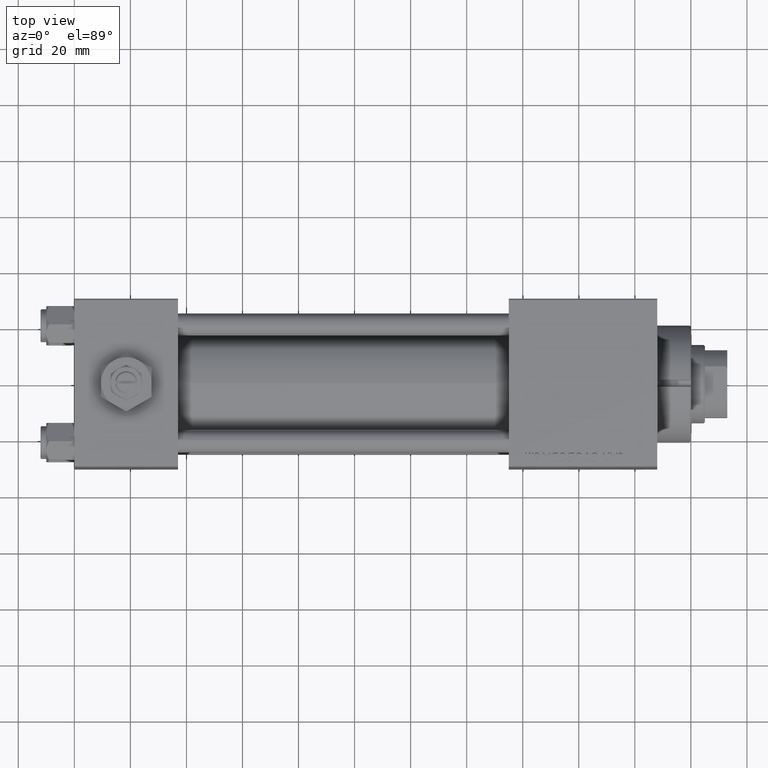
[diagram: clean part render]
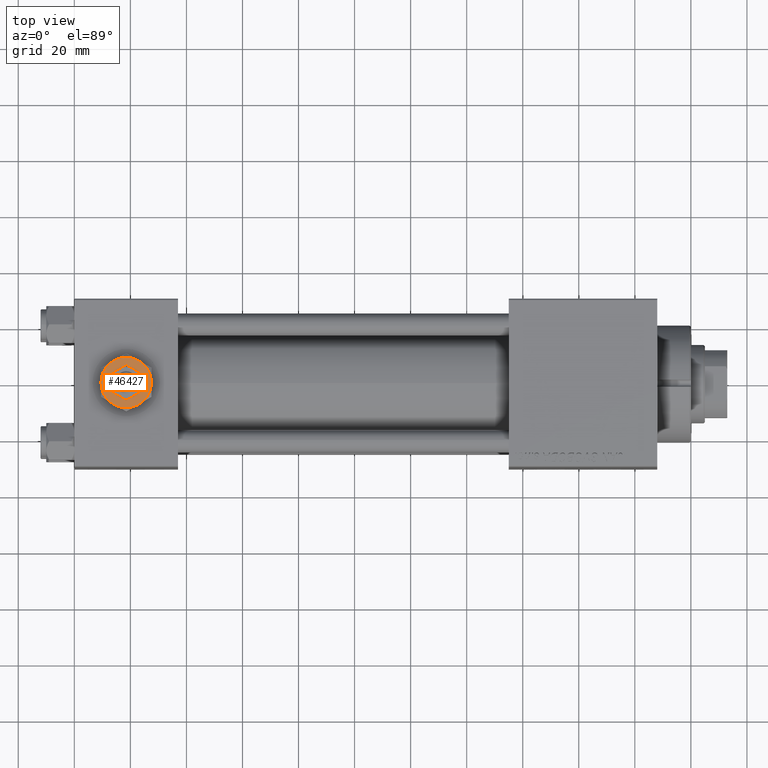
[diagram: same view with one face highlighted and labeled with its STEP entity id]
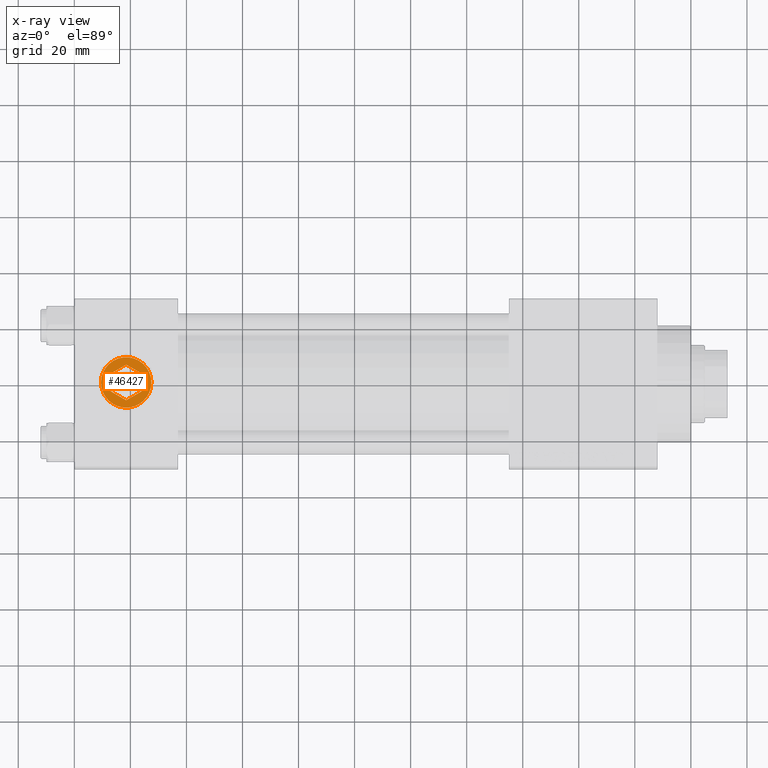
[diagram: x-ray of the same camera — body ghosted, the highlighted face saturated]
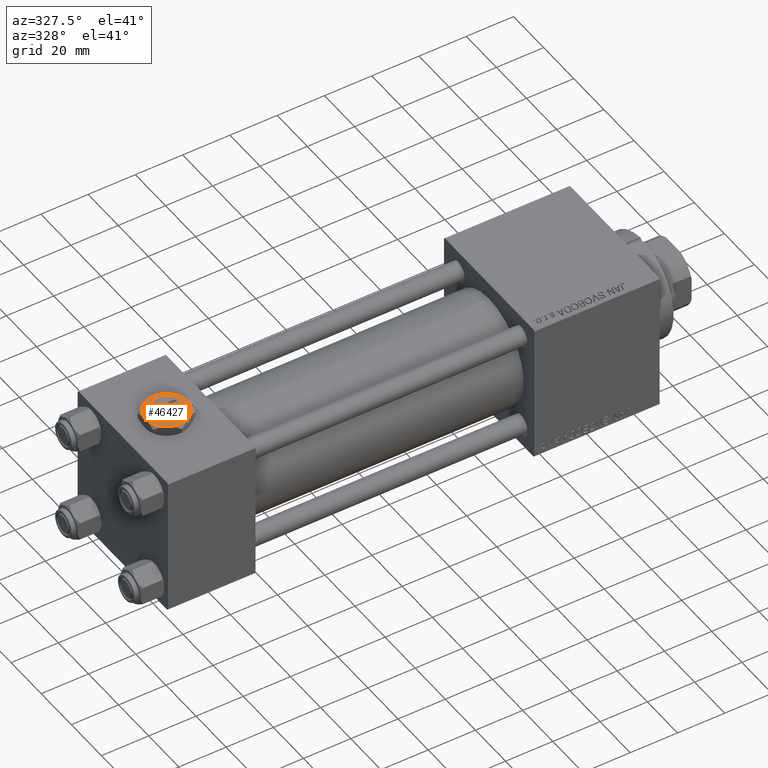
[diagram: same view with one face highlighted and labeled with its STEP entity id]
A machine part, top view. The second image highlights one B-rep face of the part: STEP entity #46427.
The next image is the same camera in x-ray: the body ghosted, the highlighted face saturated — about 0% of this face is hidden behind the body in this view.
A second angle (auxiliary view) of the same face is appended — the face is thin or edge-on in the first view.
In plain terms, the highlighted planar face has unit normal (0, 0, 1).
Its self-contained STEP definition (entity closure, byte-faithful):
#187 = LINE ( 'NONE', #32376, #12826 ) ;
#357 = LINE ( 'NONE', #35458, #21827 ) ;
#443 = CARTESIAN_POINT ( 'NONE',  ( 4.500000000000000000, 7.794228634059947147, 4.299999999999999822 ) ) ;
#1286 = DIRECTION ( 'NONE',  ( 1.000000000000000000, 0.000000000000000000, 0.000000000000000000 ) ) ;
#1504 = EDGE_CURVE ( 'NONE', #30751, #33953, #19596, .T. ) ;
#1553 = CIRCLE ( 'NONE', #49598, 9.000000000000000000 ) ;
#1892 = VECTOR ( 'NONE', #4591, 1000.000000000000000 ) ;
#2104 = ORIENTED_EDGE ( 'NONE', *, *, #18911, .T. ) ;
#2302 = VERTEX_POINT ( 'NONE', #43899 ) ;
#2419 = CARTESIAN_POINT ( 'NONE',  ( 0.000000000000000000, 6.350852961085883486, 4.299999999999999822 ) ) ;
#3483 = CARTESIAN_POINT ( 'NONE',  ( 0.000000000000000000, 0.000000000000000000, 4.299999999999999822 ) ) ;
#4326 = DIRECTION ( 'NONE',  ( 0.000000000000000000, -1.000000000000000000, 0.000000000000000000 ) ) ;
#4591 = DIRECTION ( 'NONE',  ( -2.731481088613017227E-16, 1.000000000000000000, 0.000000000000000000 ) ) ;
#5126 = AXIS2_PLACEMENT_3D ( 'NONE', #49446, #25924, #13256 ) ;
#5233 = ORIENTED_EDGE ( 'NONE', *, *, #31580, .F. ) ;
#7044 = ORIENTED_EDGE ( 'NONE', *, *, #19387, .T. ) ;
#7446 = CIRCLE ( 'NONE', #30193, 9.000000000000000000 ) ;
#7541 = VERTEX_POINT ( 'NONE', #443 ) ;
#7604 = ORIENTED_EDGE ( 'NONE', *, *, #43086, .F. ) ;
#7821 = DIRECTION ( 'NONE',  ( 1.000000000000000000, 0.000000000000000000, 0.000000000000000000 ) ) ;
#7831 = ORIENTED_EDGE ( 'NONE', *, *, #1504, .F. ) ;
#8319 = CARTESIAN_POINT ( 'NONE',  ( -1.343581385738006573E-15, -6.350852961085881709, 4.299999999999999822 ) ) ;
#11291 = EDGE_LOOP ( 'NONE', ( #31088, #35893, #5233, #20881, #7604, #7831 ) ) ;
#11347 = VERTEX_POINT ( 'NONE', #34428 ) ;
#12301 = CARTESIAN_POINT ( 'NONE',  ( 0.000000000000000000, 0.000000000000000000, 4.299999999999999822 ) ) ;
#12501 = DIRECTION ( 'NONE',  ( 0.000000000000000000, 0.000000000000000000, 1.000000000000000000 ) ) ;
#12820 = DIRECTION ( 'NONE',  ( 0.000000000000000000, 0.000000000000000000, 1.000000000000000000 ) ) ;
#12826 = VECTOR ( 'NONE', #24179, 1000.000000000000000 ) ;
#13256 = DIRECTION ( 'NONE',  ( 1.000000000000000000, 0.000000000000000000, -0.000000000000000000 ) ) ;
#14787 = CARTESIAN_POINT ( 'NONE',  ( -9.000000000000000000, 0.000000000000000000, 4.299999999999999822 ) ) ;
#16442 = CARTESIAN_POINT ( 'NONE',  ( 4.499999999999997335, -7.794228634059948035, 4.299999999999999822 ) ) ;
#16494 = EDGE_CURVE ( 'NONE', #7541, #39698, #45265, .T. ) ;
#17292 = VECTOR ( 'NONE', #4326, 1000.000000000000000 ) ;
#17469 = FACE_BOUND ( 'NONE', #11291, .T. ) ;
#18911 = EDGE_CURVE ( 'NONE', #11347, #7541, #7446, .T. ) ;
#19146 = EDGE_CURVE ( 'NONE', #2302, #39562, #47069, .T. ) ;
#19387 = EDGE_CURVE ( 'NONE', #39562, #11347, #1553, .T. ) ;
#19596 = LINE ( 'NONE', #40483, #17292 ) ;
#20881 = ORIENTED_EDGE ( 'NONE', *, *, #32129, .F. ) ;
#21338 = LINE ( 'NONE', #33003, #35448 ) ;
#21827 = VECTOR ( 'NONE', #36243, 1000.000000000000000 ) ;
#21859 = EDGE_CURVE ( 'NONE', #23604, #37835, #357, .T. ) ;
#22210 = DIRECTION ( 'NONE',  ( -0.8660254037844385966, -0.4999999999999999445, 0.000000000000000000 ) ) ;
#23303 = DIRECTION ( 'NONE',  ( 0.000000000000000000, 0.000000000000000000, 1.000000000000000000 ) ) ;
#23604 = VERTEX_POINT ( 'NONE', #52162 ) ;
#24119 = CARTESIAN_POINT ( 'NONE',  ( 0.000000000000000000, 0.000000000000000000, 4.299999999999999822 ) ) ;
#24124 = CARTESIAN_POINT ( 'NONE',  ( 5.500000000000000888, -3.175426480542940855, 4.299999999999999822 ) ) ;
#24179 = DIRECTION ( 'NONE',  ( 0.8660254037844388186, 0.4999999999999997224, 0.000000000000000000 ) ) ;
#24326 = CARTESIAN_POINT ( 'NONE',  ( 0.000000000000000000, 0.000000000000000000, 4.299999999999999822 ) ) ;
#24365 = CIRCLE ( 'NONE', #42905, 9.000000000000000000 ) ;
#24894 = EDGE_CURVE ( 'NONE', #32311, #2302, #43019, .T. ) ;
#24999 = AXIS2_PLACEMENT_3D ( 'NONE', #24326, #43881, #47850 ) ;
#25040 = EDGE_LOOP ( 'NONE', ( #7044, #2104, #25413, #46531, #31307, #28196 ) ) ;
#25413 = ORIENTED_EDGE ( 'NONE', *, *, #16494, .T. ) ;
#25924 = DIRECTION ( 'NONE',  ( 0.000000000000000000, 0.000000000000000000, 1.000000000000000000 ) ) ;
#28196 = ORIENTED_EDGE ( 'NONE', *, *, #19146, .T. ) ;
#29372 = CARTESIAN_POINT ( 'NONE',  ( 0.000000000000000000, 6.350852961085883486, 4.299999999999999822 ) ) ;
#29640 = PLANE ( 'NONE',  #5126 ) ;
#29708 = CARTESIAN_POINT ( 'NONE',  ( -5.500000000000000000, -3.175426480542942187, 4.299999999999999822 ) ) ;
#30187 = DIRECTION ( 'NONE',  ( 1.000000000000000000, 0.000000000000000000, 0.000000000000000000 ) ) ;
#30193 = AXIS2_PLACEMENT_3D ( 'NONE', #49330, #37433, #1286 ) ;
#30661 = CARTESIAN_POINT ( 'NONE',  ( -4.500000000000000000, 7.794228634059947147, 4.299999999999999822 ) ) ;
#30751 = VERTEX_POINT ( 'NONE', #33798 ) ;
#31088 = ORIENTED_EDGE ( 'NONE', *, *, #46380, .F. ) ;
#31307 = ORIENTED_EDGE ( 'NONE', *, *, #24894, .T. ) ;
#31580 = EDGE_CURVE ( 'NONE', #49389, #23604, #44721, .T. ) ;
#31869 = AXIS2_PLACEMENT_3D ( 'NONE', #12301, #12820, #7821 ) ;
#32129 = EDGE_CURVE ( 'NONE', #44508, #49389, #187, .T. ) ;
#32311 = VERTEX_POINT ( 'NONE', #14787 ) ;
#32376 = CARTESIAN_POINT ( 'NONE',  ( -1.343581385738006573E-15, -6.350852961085881709, 4.299999999999999822 ) ) ;
#33003 = CARTESIAN_POINT ( 'NONE',  ( -5.500000000000000000, -3.175426480542942187, 4.299999999999999822 ) ) ;
#33798 = CARTESIAN_POINT ( 'NONE',  ( -5.500000000000000000, 3.175426480542941743, 4.299999999999999822 ) ) ;
#33953 = VERTEX_POINT ( 'NONE', #29708 ) ;
#34378 = LINE ( 'NONE', #29372, #37181 ) ;
#34428 = CARTESIAN_POINT ( 'NONE',  ( 8.999999999999998224, 0.000000000000000000, 4.299999999999999822 ) ) ;
#35448 = VECTOR ( 'NONE', #37209, 1000.000000000000000 ) ;
#35458 = CARTESIAN_POINT ( 'NONE',  ( 5.499999999999999112, 3.175426480542943075, 4.299999999999999822 ) ) ;
#35673 = DIRECTION ( 'NONE',  ( 0.000000000000000000, 0.000000000000000000, 1.000000000000000000 ) ) ;
#35893 = ORIENTED_EDGE ( 'NONE', *, *, #21859, .F. ) ;
#36243 = DIRECTION ( 'NONE',  ( -0.8660254037844387076, 0.4999999999999999445, 0.000000000000000000 ) ) ;
#37181 = VECTOR ( 'NONE', #22210, 1000.000000000000114 ) ;
#37209 = DIRECTION ( 'NONE',  ( 0.8660254037844387076, -0.4999999999999998890, 0.000000000000000000 ) ) ;
#37293 = FACE_OUTER_BOUND ( 'NONE', #25040, .T. ) ;
#37433 = DIRECTION ( 'NONE',  ( 0.000000000000000000, 0.000000000000000000, 1.000000000000000000 ) ) ;
#37835 = VERTEX_POINT ( 'NONE', #2419 ) ;
#38905 = EDGE_CURVE ( 'NONE', #39698, #32311, #24365, .T. ) ;
#39562 = VERTEX_POINT ( 'NONE', #16442 ) ;
#39698 = VERTEX_POINT ( 'NONE', #30661 ) ;
#40426 = DIRECTION ( 'NONE',  ( 1.000000000000000000, 0.000000000000000000, 0.000000000000000000 ) ) ;
#40483 = CARTESIAN_POINT ( 'NONE',  ( -5.500000000000000000, 3.175426480542941743, 4.299999999999999822 ) ) ;
#40748 = CARTESIAN_POINT ( 'NONE',  ( 5.500000000000000888, -3.175426480542940855, 4.299999999999999822 ) ) ;
#41370 = AXIS2_PLACEMENT_3D ( 'NONE', #47359, #23303, #30187 ) ;
#42905 = AXIS2_PLACEMENT_3D ( 'NONE', #3483, #35673, #40426 ) ;
#43019 = CIRCLE ( 'NONE', #41370, 9.000000000000000000 ) ;
#43086 = EDGE_CURVE ( 'NONE', #33953, #44508, #21338, .T. ) ;
#43881 = DIRECTION ( 'NONE',  ( 0.000000000000000000, 0.000000000000000000, 1.000000000000000000 ) ) ;
#43899 = CARTESIAN_POINT ( 'NONE',  ( -4.499999999999998224, -7.794228634059947147, 4.299999999999999822 ) ) ;
#44508 = VERTEX_POINT ( 'NONE', #8319 ) ;
#44721 = LINE ( 'NONE', #40748, #1892 ) ;
#44731 = DIRECTION ( 'NONE',  ( 1.000000000000000000, 0.000000000000000000, 0.000000000000000000 ) ) ;
#45265 = CIRCLE ( 'NONE', #24999, 9.000000000000000000 ) ;
#46380 = EDGE_CURVE ( 'NONE', #37835, #30751, #34378, .T. ) ;
#46427 = ADVANCED_FACE ( 'NONE', ( #37293, #17469 ), #29640, .T. ) ;
#46531 = ORIENTED_EDGE ( 'NONE', *, *, #38905, .T. ) ;
#47069 = CIRCLE ( 'NONE', #31869, 9.000000000000000000 ) ;
#47359 = CARTESIAN_POINT ( 'NONE',  ( 0.000000000000000000, 0.000000000000000000, 4.299999999999999822 ) ) ;
#47850 = DIRECTION ( 'NONE',  ( 1.000000000000000000, 0.000000000000000000, 0.000000000000000000 ) ) ;
#49330 = CARTESIAN_POINT ( 'NONE',  ( 0.000000000000000000, 0.000000000000000000, 4.299999999999999822 ) ) ;
#49389 = VERTEX_POINT ( 'NONE', #24124 ) ;
#49446 = CARTESIAN_POINT ( 'NONE',  ( 0.000000000000000000, 0.000000000000000000, 4.299999999999999822 ) ) ;
#49598 = AXIS2_PLACEMENT_3D ( 'NONE', #24119, #12501, #44731 ) ;
#52162 = CARTESIAN_POINT ( 'NONE',  ( 5.499999999999999112, 3.175426480542943075, 4.299999999999999822 ) ) ;